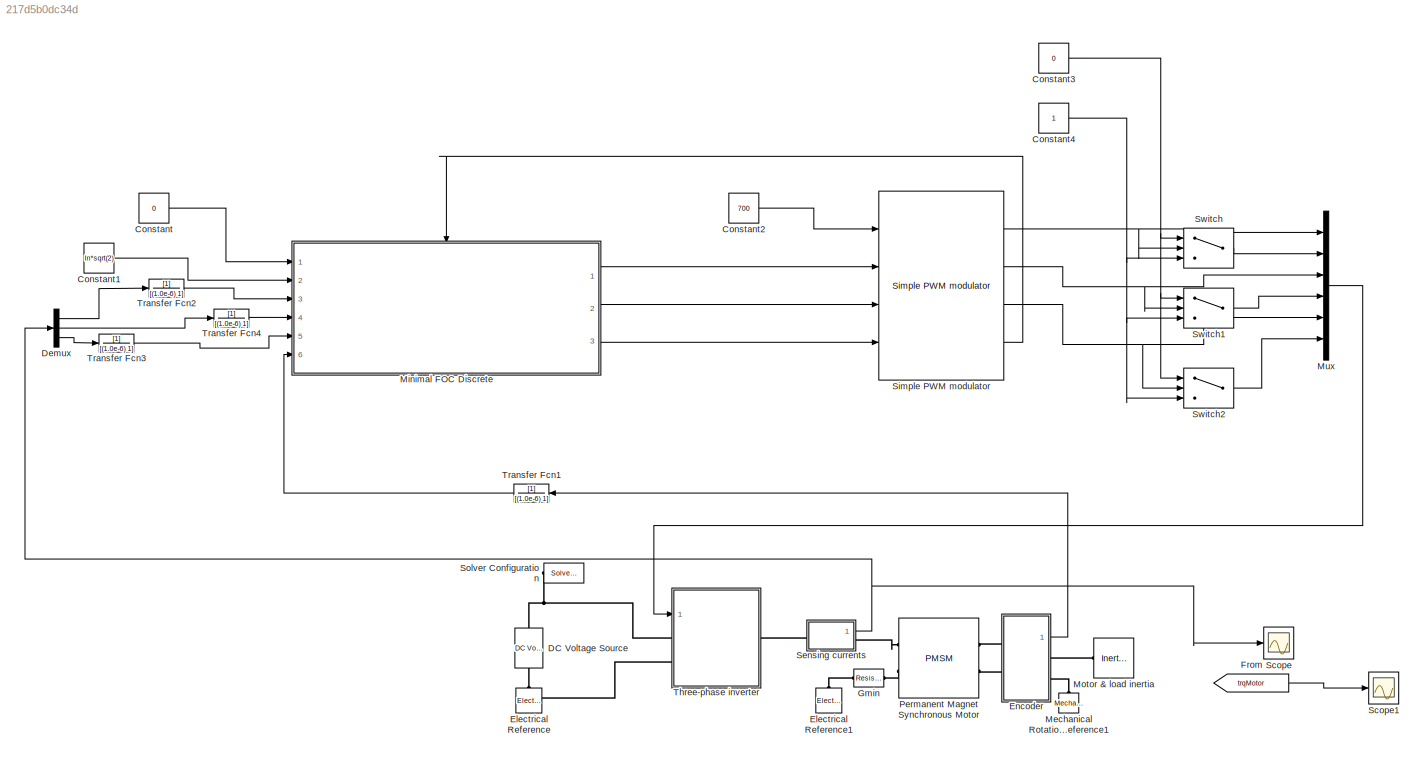
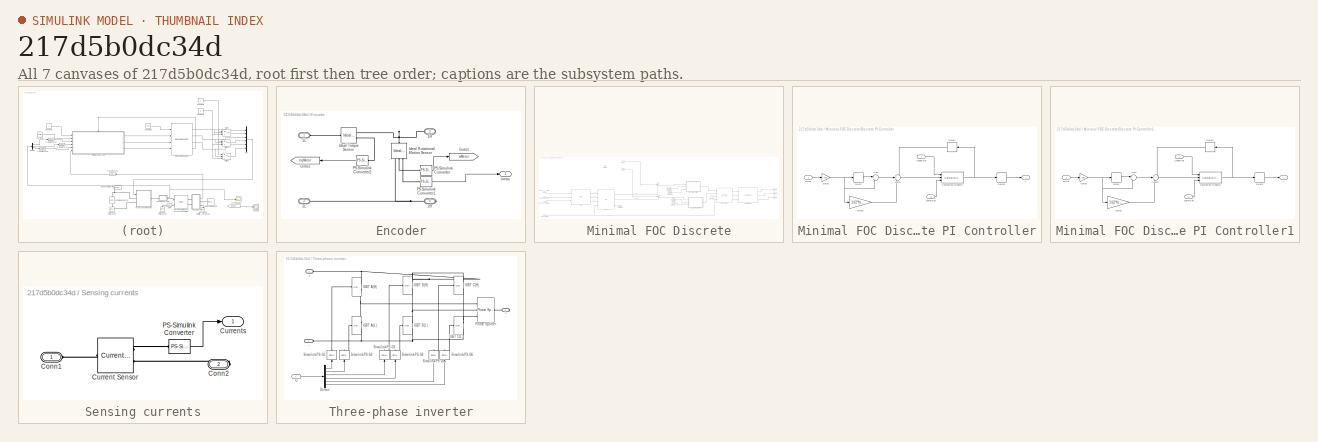
[diagram: thumbnail index - all 7 canvases of the model, root first then tree order]
MODEL slx_217d5b0dc34d
KIND model
CONFIG AbsTol = auto
CONFIG EnableMultiTasking = off
CONFIG FixedStep = auto
CONFIG MaxStep = 1/(f_sw*100)
CONFIG MinStep = auto
CONFIG RelTol = 1e-4
CONFIG SampleTimeConstraint = Unconstrained
CONFIG Solver = VariableStepAuto
CONFIG SolverName = VariableStepAuto
CONFIG StartTime = 0.0
CONFIG StopTime = 0.5
BLOCK [Constant] Constant
  SampleTime = Ts
  Value = 0
BLOCK [Constant] Constant1
  SampleTime = Ts
  Value = In*sqrt(2)
BLOCK [Constant] Constant2
  SampleTime = Ts
  Value = 700
BLOCK [Constant] Constant3
  SampleTime = Ts
  Value = 0
BLOCK [Constant] Constant4
  SampleTime = Ts
BLOCK [Reference] DC Voltage Source  REF=ee_lib/Additional
Components/SPICE Sources/DC Voltage Source
  Ports = [0, 0, 0, 0, 0, 1, 1]
  SourceBlock = ee_lib/Additional\nComponents/SPICE Sources/DC Voltage Source
  SourceProductBaseCode = PS
  SourceProductName = Simscape Electrical
  SourceType = DC Voltage Source
BLOCK [Demux] Demux
  DisplayOption = bar
  Outputs = 3
  Ports = [1, 3]
BLOCK [Reference] Electrical Reference  REF=fl_lib/Electrical/Electrical Elements/Electrical Reference
  Ports = [0, 0, 0, 0, 0, 1]
  SourceBlock = fl_lib/Electrical/Electrical Elements/Electrical Reference
  SourceProductBaseCode = SS
  SourceProductName = Simscape
  SourceType = Electrical Reference
BLOCK [Reference] Electrical Reference1  REF=fl_lib/Electrical/Electrical Elements/Electrical Reference
  Ports = [0, 0, 0, 0, 0, 1]
  SourceBlock = fl_lib/Electrical/Electrical Elements/Electrical Reference
  SourceProductBaseCode = SS
  SourceProductName = Simscape
  SourceType = Electrical Reference
BLOCK [SubSystem] Encoder
  Ports = [0, 1, 0, 0, 0, 2, 2]
  RequestExecContextInheritance = off
BLOCK [PMIOPort] Encoder/1L
  Side = Left
BLOCK [PMIOPort] Encoder/1R
  Port = 3
  Side = Right
BLOCK [PMIOPort] Encoder/2L
  Port = 2
  Side = Left
BLOCK [PMIOPort] Encoder/2R
  Port = 4
  Side = Right
BLOCK [Goto] Encoder/Goto1
  GotoTag = wMotor
  TagVisibility = global
BLOCK [Goto] Encoder/Goto2
  GotoTag = trqMotor
  TagVisibility = global
BLOCK [Reference] Encoder/Ideal Rotational Motion Sensor  REF=fl_lib/Mechanical/Mechanical Sensors/Ideal Rotational
Motion Sensor
  Ports = [0, 0, 0, 0, 0, 1, 3]
  SourceBlock = fl_lib/Mechanical/Mechanical Sensors/Ideal Rotational\nMotion Sensor
  SourceProductBaseCode = SS
  SourceProductName = Simscape
  SourceType = Ideal Rotational\nMotion Sensor
BLOCK [Reference] Encoder/Ideal Torque Sensor  REF=fl_lib/Mechanical/Mechanical Sensors/Ideal Torque Sensor
  Ports = [0, 0, 0, 0, 0, 1, 2]
  SourceBlock = fl_lib/Mechanical/Mechanical Sensors/Ideal Torque Sensor
  SourceProductBaseCode = SS
  SourceProductName = Simscape
  SourceType = Ideal Torque Sensor
BLOCK [Reference] Encoder/PS-Simulink Converter  REF=nesl_utility/PS-Simulink
Converter
  Ports = [0, 1, 0, 0, 0, 1]
  SourceBlock = nesl_utility/PS-Simulink\nConverter
  SourceProductBaseCode = SS
  SourceProductName = Simscape
  SourceType = PS-Simulink\nConverter
BLOCK [Reference] Encoder/PS-Simulink Converter1  REF=nesl_utility/PS-Simulink
Converter
  Ports = [0, 1, 0, 0, 0, 1]
  SourceBlock = nesl_utility/PS-Simulink\nConverter
  SourceProductBaseCode = SS
  SourceProductName = Simscape
  SourceType = PS-Simulink\nConverter
BLOCK [Reference] Encoder/PS-Simulink Converter2  REF=nesl_utility/PS-Simulink
Converter
  Ports = [0, 1, 0, 0, 0, 1]
  SourceBlock = nesl_utility/PS-Simulink\nConverter
  SourceProductBaseCode = SS
  SourceProductName = Simscape
  SourceType = PS-Simulink\nConverter
BLOCK [Outport] Encoder/meas
  IconDisplay = Port number
  VectorParamsAs1DForOutWhenUnconnected = off
BLOCK [From] From
  GotoTag = trqMotor
  TagVisibility = global
BLOCK [Reference] Gmin  REF=fl_lib/Electrical/Electrical Elements/Resistor
  Ports = [0, 0, 0, 0, 0, 1, 1]
  SourceBlock = fl_lib/Electrical/Electrical Elements/Resistor
  SourceProductBaseCode = SS
  SourceProductName = Simscape
  SourceType = Resistor
BLOCK [Reference] Mechanical Rotational Reference1  REF=fl_lib/Mechanical/Rotational Elements/Mechanical
Rotational Reference
  Ports = [0, 0, 0, 0, 0, 1]
  SourceBlock = fl_lib/Mechanical/Rotational Elements/Mechanical\nRotational Reference
  SourceProductBaseCode = SS
  SourceProductName = Simscape
  SourceType = Mechanical\nRotational Reference
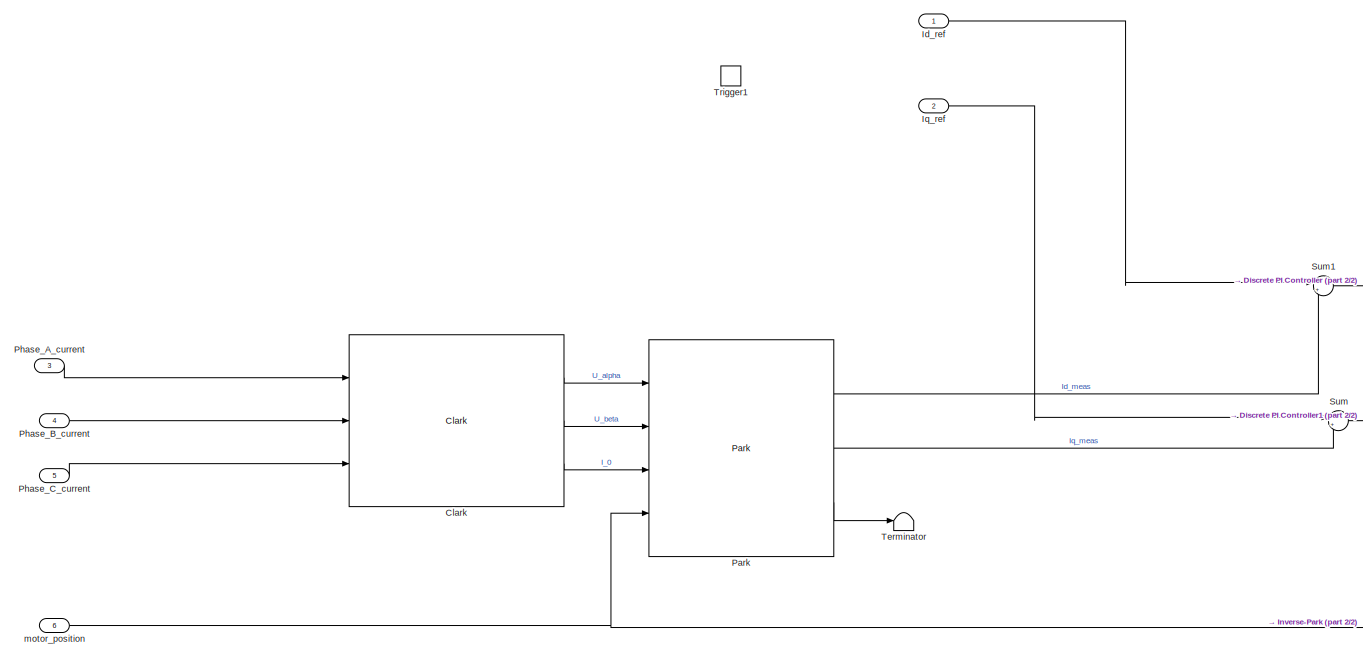
[diagram: Minimal FOC Discrete - part 1/2, left side, full height]
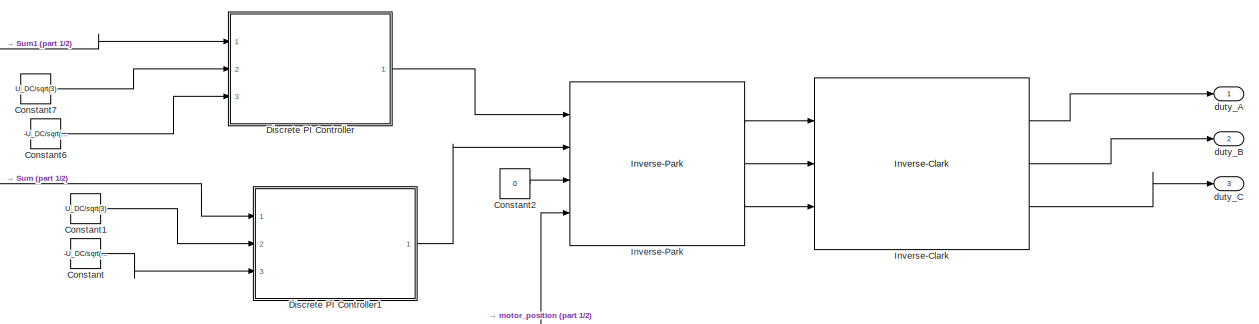
[diagram: Minimal FOC Discrete - part 2/2, middle right region]
BLOCK [SubSystem] Minimal FOC Discrete
  AncestorBlock = controllers/Minimal FOC Discrete
  Ports = [6, 3, 0, 1]
  RequestExecContextInheritance = off
BLOCK [Reference] Minimal FOC Discrete/Clark  REF=coordinate_transformations/Clark  (lib defined in slx_d357c885b4a9)
  Ports = [3, 3]
  SourceBlock = coordinate_transformations/Clark
  SourceType = SubSystem
BLOCK [Constant] Minimal FOC Discrete/Constant
  Value = -U_DC/sqrt(3)
BLOCK [Constant] Minimal FOC Discrete/Constant1
  Value = U_DC/sqrt(3)
BLOCK [Constant] Minimal FOC Discrete/Constant2
  Value = 0
BLOCK [Constant] Minimal FOC Discrete/Constant6
  Value = -U_DC/sqrt(3)
BLOCK [Constant] Minimal FOC Discrete/Constant7
  Value = U_DC/sqrt(3)
BLOCK [SubSystem] Minimal FOC Discrete/Discrete PI Controller
  AncestorBlock = controllers/Discrete PI Controller
  Ports = [3, 1]
  RequestExecContextInheritance = off
BLOCK [Delay] Minimal FOC Discrete/Discrete PI Controller/Delay
  DelayLength = 1
  InputPortMap = u0
  Ports = [1, 1]
BLOCK [Delay] Minimal FOC Discrete/Discrete PI Controller/Delay1
  DelayLength = 1
  InputPortMap = u0
  Ports = [1, 1]
BLOCK [Delay] Minimal FOC Discrete/Discrete PI Controller/Delay2
  DelayLength = 1
  InputPortMap = u0
  Ports = [1, 1]
BLOCK [Inport] Minimal FOC Discrete/Discrete PI Controller/Error
  IconDisplay = Port number
BLOCK [Gain] Minimal FOC Discrete/Discrete PI Controller/Gain1
  Gain = Apd
  OutDataTypeStr = Inherit: Inherit via internal rule
  ParamDataTypeStr = Inherit: Inherit via internal rule
  SaturateOnIntegerOverflow = off
BLOCK [Gain] Minimal FOC Discrete/Discrete PI Controller/Gain2
  Gain = 1/(2*fs*Tid)
  OutDataTypeStr = Inherit: Inherit via internal rule
  ParamDataTypeStr = Inherit: Inherit via internal rule
  SaturateOnIntegerOverflow = off
BLOCK [Inport] Minimal FOC Discrete/Discrete PI Controller/LowerSat
  IconDisplay = Port number
  Port = 3
BLOCK [Reference] Minimal FOC Discrete/Discrete PI Controller/Saturation Dynamic  REF=simulink/Discontinuities/Saturation
Dynamic
  Ports = [3, 1]
  SourceBlock = simulink/Discontinuities/Saturation\nDynamic
  SourceProductBaseCode = SL
  SourceProductName = Simulink
  SourceType = Saturation Dynamic
BLOCK [Sum] Minimal FOC Discrete/Discrete PI Controller/Sum
  IconShape = round
  InputSameDT = off
  Inputs = |-+
  OutDataTypeStr = Inherit: Inherit via internal rule
  Ports = [2, 1]
  SaturateOnIntegerOverflow = off
BLOCK [Sum] Minimal FOC Discrete/Discrete PI Controller/Sum1
  IconShape = round
  InputSameDT = off
  Inputs = +++
  OutDataTypeStr = Inherit: Inherit via internal rule
  Ports = [3, 1]
  SaturateOnIntegerOverflow = off
BLOCK [Inport] Minimal FOC Discrete/Discrete PI Controller/UpperSat
  IconDisplay = Port number
  Port = 2
BLOCK [Outport] Minimal FOC Discrete/Discrete PI Controller/y
  IconDisplay = Port number
BLOCK [SubSystem] Minimal FOC Discrete/Discrete PI Controller1
  AncestorBlock = controllers/Discrete PI Controller
  Ports = [3, 1]
  RequestExecContextInheritance = off
BLOCK [Delay] Minimal FOC Discrete/Discrete PI Controller1/Delay
  DelayLength = 1
  InputPortMap = u0
  Ports = [1, 1]
BLOCK [Delay] Minimal FOC Discrete/Discrete PI Controller1/Delay1
  DelayLength = 1
  InputPortMap = u0
  Ports = [1, 1]
BLOCK [Delay] Minimal FOC Discrete/Discrete PI Controller1/Delay2
  DelayLength = 1
  InputPortMap = u0
  Ports = [1, 1]
BLOCK [Inport] Minimal FOC Discrete/Discrete PI Controller1/Error
  IconDisplay = Port number
BLOCK [Gain] Minimal FOC Discrete/Discrete PI Controller1/Gain1
  Gain = Apd
  OutDataTypeStr = Inherit: Inherit via internal rule
  ParamDataTypeStr = Inherit: Inherit via internal rule
  SaturateOnIntegerOverflow = off
BLOCK [Gain] Minimal FOC Discrete/Discrete PI Controller1/Gain2
  Gain = 1/(2*fs*Tid)
  OutDataTypeStr = Inherit: Inherit via internal rule
  ParamDataTypeStr = Inherit: Inherit via internal rule
  SaturateOnIntegerOverflow = off
BLOCK [Inport] Minimal FOC Discrete/Discrete PI Controller1/LowerSat
  IconDisplay = Port number
  Port = 3
BLOCK [Reference] Minimal FOC Discrete/Discrete PI Controller1/Saturation Dynamic  REF=simulink/Discontinuities/Saturation
Dynamic
  Ports = [3, 1]
  SourceBlock = simulink/Discontinuities/Saturation\nDynamic
  SourceProductBaseCode = SL
  SourceProductName = Simulink
  SourceType = Saturation Dynamic
BLOCK [Sum] Minimal FOC Discrete/Discrete PI Controller1/Sum
  IconShape = round
  InputSameDT = off
  Inputs = |-+
  OutDataTypeStr = Inherit: Inherit via internal rule
  Ports = [2, 1]
  SaturateOnIntegerOverflow = off
BLOCK [Sum] Minimal FOC Discrete/Discrete PI Controller1/Sum1
  IconShape = round
  InputSameDT = off
  Inputs = +++
  OutDataTypeStr = Inherit: Inherit via internal rule
  Ports = [3, 1]
  SaturateOnIntegerOverflow = off
BLOCK [Inport] Minimal FOC Discrete/Discrete PI Controller1/UpperSat
  IconDisplay = Port number
  Port = 2
BLOCK [Outport] Minimal FOC Discrete/Discrete PI Controller1/y
  IconDisplay = Port number
BLOCK [Inport] Minimal FOC Discrete/Id_ref
  IconDisplay = Port number
BLOCK [Reference] Minimal FOC Discrete/Inverse-Clark  REF=coordinate_transformations/Inverse-Clark  (lib defined in slx_d357c885b4a9)
  Ports = [3, 3]
  SourceBlock = coordinate_transformations/Inverse-Clark
  SourceType = SubSystem
BLOCK [Reference] Minimal FOC Discrete/Inverse-Park  REF=coordinate_transformations/Inverse-Park  (lib defined in slx_d357c885b4a9)
  Ports = [4, 3]
  SourceBlock = coordinate_transformations/Inverse-Park
  SourceType = SubSystem
BLOCK [Inport] Minimal FOC Discrete/Iq_ref
  IconDisplay = Port number
  Port = 2
BLOCK [Reference] Minimal FOC Discrete/Park  REF=coordinate_transformations/Park  (lib defined in slx_d357c885b4a9)
  Ports = [4, 3]
  SourceBlock = coordinate_transformations/Park
  SourceType = SubSystem
BLOCK [Inport] Minimal FOC Discrete/Phase_A_current
  IconDisplay = Port number
  Port = 3
BLOCK [Inport] Minimal FOC Discrete/Phase_B_current
  IconDisplay = Port number
  Port = 4
BLOCK [Inport] Minimal FOC Discrete/Phase_C_current
  IconDisplay = Port number
  Port = 5
BLOCK [Sum] Minimal FOC Discrete/Sum
  IconShape = round
  InputSameDT = off
  Inputs = |+-
  OutDataTypeStr = Inherit: Inherit via internal rule
  Ports = [2, 1]
  SaturateOnIntegerOverflow = off
BLOCK [Sum] Minimal FOC Discrete/Sum1
  IconShape = round
  InputSameDT = off
  Inputs = |+-
  OutDataTypeStr = Inherit: Inherit via internal rule
  Ports = [2, 1]
  SaturateOnIntegerOverflow = off
BLOCK [Terminator] Minimal FOC Discrete/Terminator
BLOCK [TriggerPort] Minimal FOC Discrete/Trigger1
  PortDimensions = 1
  Ports = []
  StatesWhenEnabling = held
  TriggerType = either
  VariantControl = Variant
BLOCK [Outport] Minimal FOC Discrete/duty_A
  IconDisplay = Port number
BLOCK [Outport] Minimal FOC Discrete/duty_B
  IconDisplay = Port number
  Port = 2
BLOCK [Outport] Minimal FOC Discrete/duty_C
  IconDisplay = Port number
  Port = 3
BLOCK [Inport] Minimal FOC Discrete/motor_position
  IconDisplay = Port number
  Port = 6
BLOCK [Reference] Motor & load inertia  REF=fl_lib/Mechanical/Rotational Elements/Inertia
  Ports = [0, 0, 0, 0, 0, 1]
  SourceBlock = fl_lib/Mechanical/Rotational Elements/Inertia
  SourceProductBaseCode = SS
  SourceProductName = Simscape
  SourceType = Inertia
BLOCK [Mux] Mux
  DisplayOption = bar
  Inputs = 6
  Ports = [6, 1]
BLOCK [Reference] Permanent Magnet Synchronous Motor  REF=ee_lib/Electromechanical/Permanent Magnet/PMSM
  Ports = [0, 0, 0, 0, 0, 2, 2]
  SourceBlock = ee_lib/Electromechanical/Permanent Magnet/PMSM
  SourceProductBaseCode = PS
  SourceProductName = Simscape Electrical
  SourceType = PMSM
BLOCK [Scope] Scope
  Floating = off
  NumInputPorts = 1
  Ports = [1]
  ScopeSpecificationString = Simulink.scopes.TimeScopeBlockCfg('CurrentConfiguration', extmgr.ConfigurationSet(extmgr.Configuration('Core','General UI',true),extmgr.Configuration('Core','Source UI',true),extmgr.Configuration('Sources','WiredSimulink',true),extmgr.Configuration('Visuals','Time Domain',true,'SerializedDisplays',{struct('MinYLimReal','-246.86586','MaxYLimReal','247.32726','YLabelReal','','MinYLimMag',' 0.00000',...<+1491ch>
BLOCK [Scope] Scope1
  Floating = off
  NumInputPorts = 1
  Ports = [1]
  ScopeSpecificationString = Simulink.scopes.TimeScopeBlockCfg('CurrentConfiguration', extmgr.ConfigurationSet(extmgr.Configuration('Core','General UI',true),extmgr.Configuration('Core','Source UI',true),extmgr.Configuration('Sources','WiredSimulink',true,'DataLoggingVariableName','ScopeData1'),extmgr.Configuration('Visuals','Time Domain',true,'SerializedDisplays',{struct('MinYLimReal','-57.15913','MaxYLimReal','197.93473','Y...<+1470ch>
BLOCK [SubSystem] Sensing currents
  Ports = [0, 1, 0, 0, 0, 1, 1]
  RequestExecContextInheritance = off
BLOCK [PMIOPort] Sensing currents/Conn1
  Side = Left
BLOCK [PMIOPort] Sensing currents/Conn2
  Port = 2
  Side = Right
BLOCK [Reference] Sensing currents/Current Sensor  REF=ee_lib/Sensors &
Transducers/Current Sensor
(Three-Phase)
  Ports = [0, 0, 0, 0, 0, 1, 2]
  SourceBlock = ee_lib/Sensors &\nTransducers/Current Sensor\n(Three-Phase)
  SourceProductBaseCode = PS
  SourceProductName = Simscape Electrical
  SourceType = Current Sensor\n(Three-Phase)
BLOCK [Outport] Sensing currents/Currents
  IconDisplay = Port number
BLOCK [Reference] Sensing currents/PS-Simulink Converter  REF=nesl_utility/PS-Simulink
Converter
  Ports = [0, 1, 0, 0, 0, 1]
  SourceBlock = nesl_utility/PS-Simulink\nConverter
  SourceProductBaseCode = SS
  SourceProductName = Simscape
  SourceType = PS-Simulink\nConverter
BLOCK [Reference] Simple PWM modulator  REF=controllers/Simple PWM modulator  (lib defined in mdl_0f1bdf7b97cc, mdl_b570f3ba1b2b, +8 more)
  Ports = [4, 4]
  SourceBlock = controllers/Simple PWM modulator
  SourceType = SubSystem
BLOCK [Reference] Solver Configuration  REF=nesl_utility/Solver
Configuration
  Ports = [0, 0, 0, 0, 0, 0, 1]
  SourceBlock = nesl_utility/Solver\nConfiguration
  SourceProductBaseCode = SS
  SourceProductName = Simscape
  SourceType = Solver\nConfiguration
BLOCK [Switch] Switch
  Criteria = u2 > Threshold
  InputSameDT = off
  SaturateOnIntegerOverflow = off
BLOCK [Switch] Switch1
  Criteria = u2 > Threshold
  InputSameDT = off
  SaturateOnIntegerOverflow = off
BLOCK [Switch] Switch2
  Criteria = u2 > Threshold
  InputSameDT = off
  SaturateOnIntegerOverflow = off
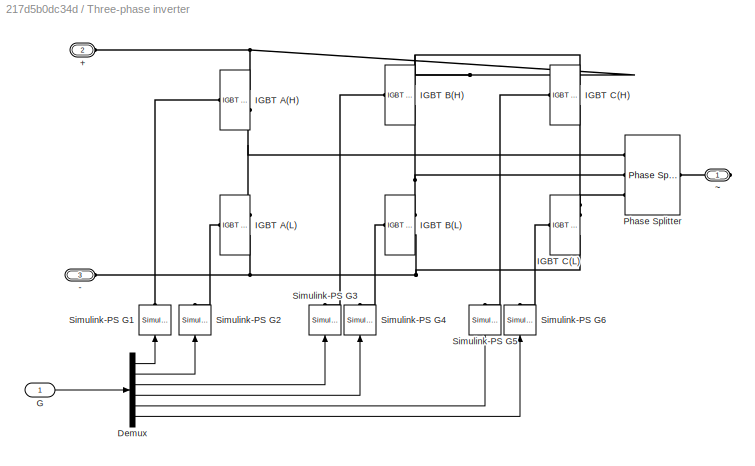
BLOCK [SubSystem] Three-phase inverter
  Ports = [1, 0, 0, 0, 0, 2, 1]
  RequestExecContextInheritance = off
BLOCK [PMIOPort] Three-phase inverter/+
  Port = 2
  Side = Left
  Tag = PMCPort
BLOCK [PMIOPort] Three-phase inverter/-
  Port = 3
  Side = Left
  Tag = PMCPort
BLOCK [Demux] Three-phase inverter/Demux
  DisplayOption = bar
  Outputs = 6
  Ports = [1, 6]
BLOCK [Inport] Three-phase inverter/G
  IconDisplay = Port number
BLOCK [Reference] Three-phase inverter/IGBT A(H)  REF=ee_lib/Semiconductors &
Converters/IGBT
(Ideal,
Switching)
  Ports = [0, 0, 0, 0, 0, 1, 2]
  SourceBlock = ee_lib/Semiconductors &\nConverters/IGBT\n(Ideal,\nSwitching)
  SourceProductBaseCode = PS
  SourceProductName = Simscape Electrical
  SourceType = IGBT\n(Ideal,\nSwitching)
BLOCK [Reference] Three-phase inverter/IGBT A(L)  REF=ee_lib/Semiconductors &
Converters/IGBT
(Ideal,
Switching)
  Ports = [0, 0, 0, 0, 0, 1, 2]
  SourceBlock = ee_lib/Semiconductors &\nConverters/IGBT\n(Ideal,\nSwitching)
  SourceProductBaseCode = PS
  SourceProductName = Simscape Electrical
  SourceType = IGBT\n(Ideal,\nSwitching)
BLOCK [Reference] Three-phase inverter/IGBT B(H)  REF=ee_lib/Semiconductors &
Converters/IGBT
(Ideal,
Switching)
  Ports = [0, 0, 0, 0, 0, 1, 2]
  SourceBlock = ee_lib/Semiconductors &\nConverters/IGBT\n(Ideal,\nSwitching)
  SourceProductBaseCode = PS
  SourceProductName = Simscape Electrical
  SourceType = IGBT\n(Ideal,\nSwitching)
BLOCK [Reference] Three-phase inverter/IGBT B(L)  REF=ee_lib/Semiconductors &
Converters/IGBT
(Ideal,
Switching)
  Ports = [0, 0, 0, 0, 0, 1, 2]
  SourceBlock = ee_lib/Semiconductors &\nConverters/IGBT\n(Ideal,\nSwitching)
  SourceProductBaseCode = PS
  SourceProductName = Simscape Electrical
  SourceType = IGBT\n(Ideal,\nSwitching)
BLOCK [Reference] Three-phase inverter/IGBT C(H)  REF=ee_lib/Semiconductors &
Converters/IGBT
(Ideal,
Switching)
  Ports = [0, 0, 0, 0, 0, 1, 2]
  SourceBlock = ee_lib/Semiconductors &\nConverters/IGBT\n(Ideal,\nSwitching)
  SourceProductBaseCode = PS
  SourceProductName = Simscape Electrical
  SourceType = IGBT\n(Ideal,\nSwitching)
BLOCK [Reference] Three-phase inverter/IGBT C(L)  REF=ee_lib/Semiconductors &
Converters/IGBT
(Ideal,
Switching)
  Ports = [0, 0, 0, 0, 0, 1, 2]
  SourceBlock = ee_lib/Semiconductors &\nConverters/IGBT\n(Ideal,\nSwitching)
  SourceProductBaseCode = PS
  SourceProductName = Simscape Electrical
  SourceType = IGBT\n(Ideal,\nSwitching)
BLOCK [Reference] Three-phase inverter/Phase Splitter  REF=ee_lib/Connectors &
References/Phase Splitter
  Ports = [0, 0, 0, 0, 0, 1, 3]
  SourceBlock = ee_lib/Connectors &\nReferences/Phase Splitter
  SourceProductBaseCode = PS
  SourceProductName = Simscape Electrical
  SourceType = Phase Splitter
BLOCK [Reference] Three-phase inverter/Simulink-PS G1  REF=nesl_utility/Simulink-PS
Converter
  Ports = [1, 0, 0, 0, 0, 0, 1]
  SourceBlock = nesl_utility/Simulink-PS\nConverter
  SourceProductBaseCode = SS
  SourceProductName = Simscape
  SourceType = Simulink-PS\nConverter
BLOCK [Reference] Three-phase inverter/Simulink-PS G2  REF=nesl_utility/Simulink-PS
Converter
  Ports = [1, 0, 0, 0, 0, 0, 1]
  SourceBlock = nesl_utility/Simulink-PS\nConverter
  SourceProductBaseCode = SS
  SourceProductName = Simscape
  SourceType = Simulink-PS\nConverter
BLOCK [Reference] Three-phase inverter/Simulink-PS G3  REF=nesl_utility/Simulink-PS
Converter
  Ports = [1, 0, 0, 0, 0, 0, 1]
  SourceBlock = nesl_utility/Simulink-PS\nConverter
  SourceProductBaseCode = SS
  SourceProductName = Simscape
  SourceType = Simulink-PS\nConverter
BLOCK [Reference] Three-phase inverter/Simulink-PS G4  REF=nesl_utility/Simulink-PS
Converter
  Ports = [1, 0, 0, 0, 0, 0, 1]
  SourceBlock = nesl_utility/Simulink-PS\nConverter
  SourceProductBaseCode = SS
  SourceProductName = Simscape
  SourceType = Simulink-PS\nConverter
BLOCK [Reference] Three-phase inverter/Simulink-PS G5  REF=nesl_utility/Simulink-PS
Converter
  Ports = [1, 0, 0, 0, 0, 0, 1]
  SourceBlock = nesl_utility/Simulink-PS\nConverter
  SourceProductBaseCode = SS
  SourceProductName = Simscape
  SourceType = Simulink-PS\nConverter
BLOCK [Reference] Three-phase inverter/Simulink-PS G6  REF=nesl_utility/Simulink-PS
Converter
  Ports = [1, 0, 0, 0, 0, 0, 1]
  SourceBlock = nesl_utility/Simulink-PS\nConverter
  SourceProductBaseCode = SS
  SourceProductName = Simscape
  SourceType = Simulink-PS\nConverter
BLOCK [PMIOPort] Three-phase inverter/~
  Side = Right
  Tag = PMCPort
BLOCK [TransferFcn] Transfer Fcn1
  Denominator = [(1.0e-6) 1]
BLOCK [TransferFcn] Transfer Fcn2
  Denominator = [(1.0e-6) 1]
BLOCK [TransferFcn] Transfer Fcn3
  Denominator = [(1.0e-6) 1]
BLOCK [TransferFcn] Transfer Fcn4
  Denominator = [(1.0e-6) 1]
LINE Constant1:1 -> Minimal FOC Discrete:2
LINE Constant2:1 -> Simple PWM modulator:1
NET Constant3:1 -> Switch1:1, Switch2:1, Switch:1
NET Constant4:1 -> Switch1:3, Switch2:3, Switch:3
LINE Constant:1 -> Minimal FOC Discrete:1
LINE Demux:1 -> Transfer Fcn2:1
LINE Demux:2 -> Transfer Fcn4:1
LINE Demux:3 -> Transfer Fcn3:1
LINE Encoder/PS-Simulink Converter1:1 -> Encoder/meas:1
LINE Encoder/PS-Simulink Converter2:1 -> Encoder/Goto2:1
LINE Encoder/PS-Simulink Converter:1 -> Encoder/Goto1:1
LINE Encoder:1 -> Transfer Fcn1:1
LINE From:1 -> Scope1:1
LINE Minimal FOC Discrete:1 -> Simple PWM modulator:2
LINE Minimal FOC Discrete:2 -> Simple PWM modulator:3
LINE Minimal FOC Discrete:3 -> Simple PWM modulator:4
LINE Mux:1 -> Three-phase inverter:1
LINE Sensing currents/PS-Simulink Converter:1 -> Sensing currents/Currents:1
NET Sensing currents:1 -> Demux:1, Scope:1
NET Simple PWM modulator:1 -> Mux:1, Switch:2
NET Simple PWM modulator:2 -> Mux:3, Switch1:2
NET Simple PWM modulator:3 -> Mux:5, Switch2:2
LINE Simple PWM modulator:4 -> Minimal FOC Discrete:trigger
LINE Switch1:1 -> Mux:4
LINE Switch2:1 -> Mux:6
LINE Switch:1 -> Mux:2
LINE Three-phase inverter/Demux:1 -> Three-phase inverter/Simulink-PS G1:1
LINE Three-phase inverter/Demux:2 -> Three-phase inverter/Simulink-PS G2:1
LINE Three-phase inverter/Demux:3 -> Three-phase inverter/Simulink-PS G3:1
LINE Three-phase inverter/Demux:4 -> Three-phase inverter/Simulink-PS G4:1
LINE Three-phase inverter/Demux:5 -> Three-phase inverter/Simulink-PS G5:1
LINE Three-phase inverter/Demux:6 -> Three-phase inverter/Simulink-PS G6:1
LINE Three-phase inverter/G:1 -> Three-phase inverter/Demux:1
LINE Transfer Fcn1:1 -> Minimal FOC Discrete:6
LINE Transfer Fcn2:1 -> Minimal FOC Discrete:3
LINE Transfer Fcn3:1 -> Minimal FOC Discrete:5
LINE Transfer Fcn4:1 -> Minimal FOC Discrete:4
PNET net1: DC Voltage Source:LConn1 -- Solver Configuration:RConn1 -- Three-phase inverter:LConn1
PNET net2: DC Voltage Source:RConn1 -- Electrical Reference:LConn1 -- Three-phase inverter:LConn2
PLINE Electrical Reference1:LConn1 -- Gmin:LConn1
PLINE Encoder/1L:RConn1 -- Encoder/Ideal Torque Sensor:LConn1
PNET net3: Encoder/1R:RConn1 -- Encoder/Ideal Rotational Motion Sensor:LConn1 -- Encoder/Ideal Torque Sensor:RConn1
PNET net4: Encoder/2L:RConn1 -- Encoder/2R:RConn1 -- Encoder/Ideal Rotational Motion Sensor:RConn1
PLINE Encoder/Ideal Rotational Motion Sensor:RConn2 -- Encoder/PS-Simulink Converter:LConn1
PLINE Encoder/Ideal Rotational Motion Sensor:RConn3 -- Encoder/PS-Simulink Converter1:LConn1
PLINE Encoder/Ideal Torque Sensor:RConn2 -- Encoder/PS-Simulink Converter2:LConn1
PLINE Encoder:LConn1 -- Permanent Magnet Synchronous Motor:RConn1
PLINE Encoder:LConn2 -- Permanent Magnet Synchronous Motor:RConn2
PLINE Encoder:RConn1 -- Motor & load inertia:LConn1
PLINE Encoder:RConn2 -- Mechanical Rotational Reference1:LConn1
PLINE Gmin:RConn1 -- Permanent Magnet Synchronous Motor:LConn2
PLINE Permanent Magnet Synchronous Motor:LConn1 -- Sensing currents:RConn1
PLINE Sensing currents/Conn1:RConn1 -- Sensing currents/Current Sensor:LConn1
PLINE Sensing currents/Conn2:RConn1 -- Sensing currents/Current Sensor:RConn2
PLINE Sensing currents/Current Sensor:RConn1 -- Sensing currents/PS-Simulink Converter:LConn1
PLINE Sensing currents:LConn1 -- Three-phase inverter:RConn1
PNET net5: Three-phase inverter/+:RConn1 -- Three-phase inverter/IGBT A(H):RConn1 -- Three-phase inverter/IGBT B(H):RConn1 -- Three-phase inverter/IGBT C(H):RConn1
PNET net6: Three-phase inverter/-:RConn1 -- Three-phase inverter/IGBT A(L):RConn2 -- Three-phase inverter/IGBT B(L):RConn2 -- Three-phase inverter/IGBT C(L):RConn2
PLINE Three-phase inverter/IGBT A(H):LConn1 -- Three-phase inverter/Simulink-PS G1:RConn1
PNET net7: Three-phase inverter/IGBT A(H):RConn2 -- Three-phase inverter/IGBT A(L):RConn1 -- Three-phase inverter/Phase Splitter:RConn1
PLINE Three-phase inverter/IGBT A(L):LConn1 -- Three-phase inverter/Simulink-PS G2:RConn1
PLINE Three-phase inverter/IGBT B(H):LConn1 -- Three-phase inverter/Simulink-PS G3:RConn1
PNET net8: Three-phase inverter/IGBT B(H):RConn2 -- Three-phase inverter/IGBT B(L):RConn1 -- Three-phase inverter/Phase Splitter:RConn2
PLINE Three-phase inverter/IGBT B(L):LConn1 -- Three-phase inverter/Simulink-PS G4:RConn1
PLINE Three-phase inverter/IGBT C(H):LConn1 -- Three-phase inverter/Simulink-PS G5:RConn1
PNET net9: Three-phase inverter/IGBT C(H):RConn2 -- Three-phase inverter/IGBT C(L):RConn1 -- Three-phase inverter/Phase Splitter:RConn3
PLINE Three-phase inverter/IGBT C(L):LConn1 -- Three-phase inverter/Simulink-PS G6:RConn1
PLINE Three-phase inverter/Phase Splitter:LConn1 -- Three-phase inverter/~:RConn1
note: NET lines group one-source signal fan-out (src -> all destinations, sorted); 1:1 wires keep LINE; PNET lines group multi-terminal physical nets as a canonical sorted terminal list (undirected conserving connections); 2-terminal nets keep the pairwise PLINE form
